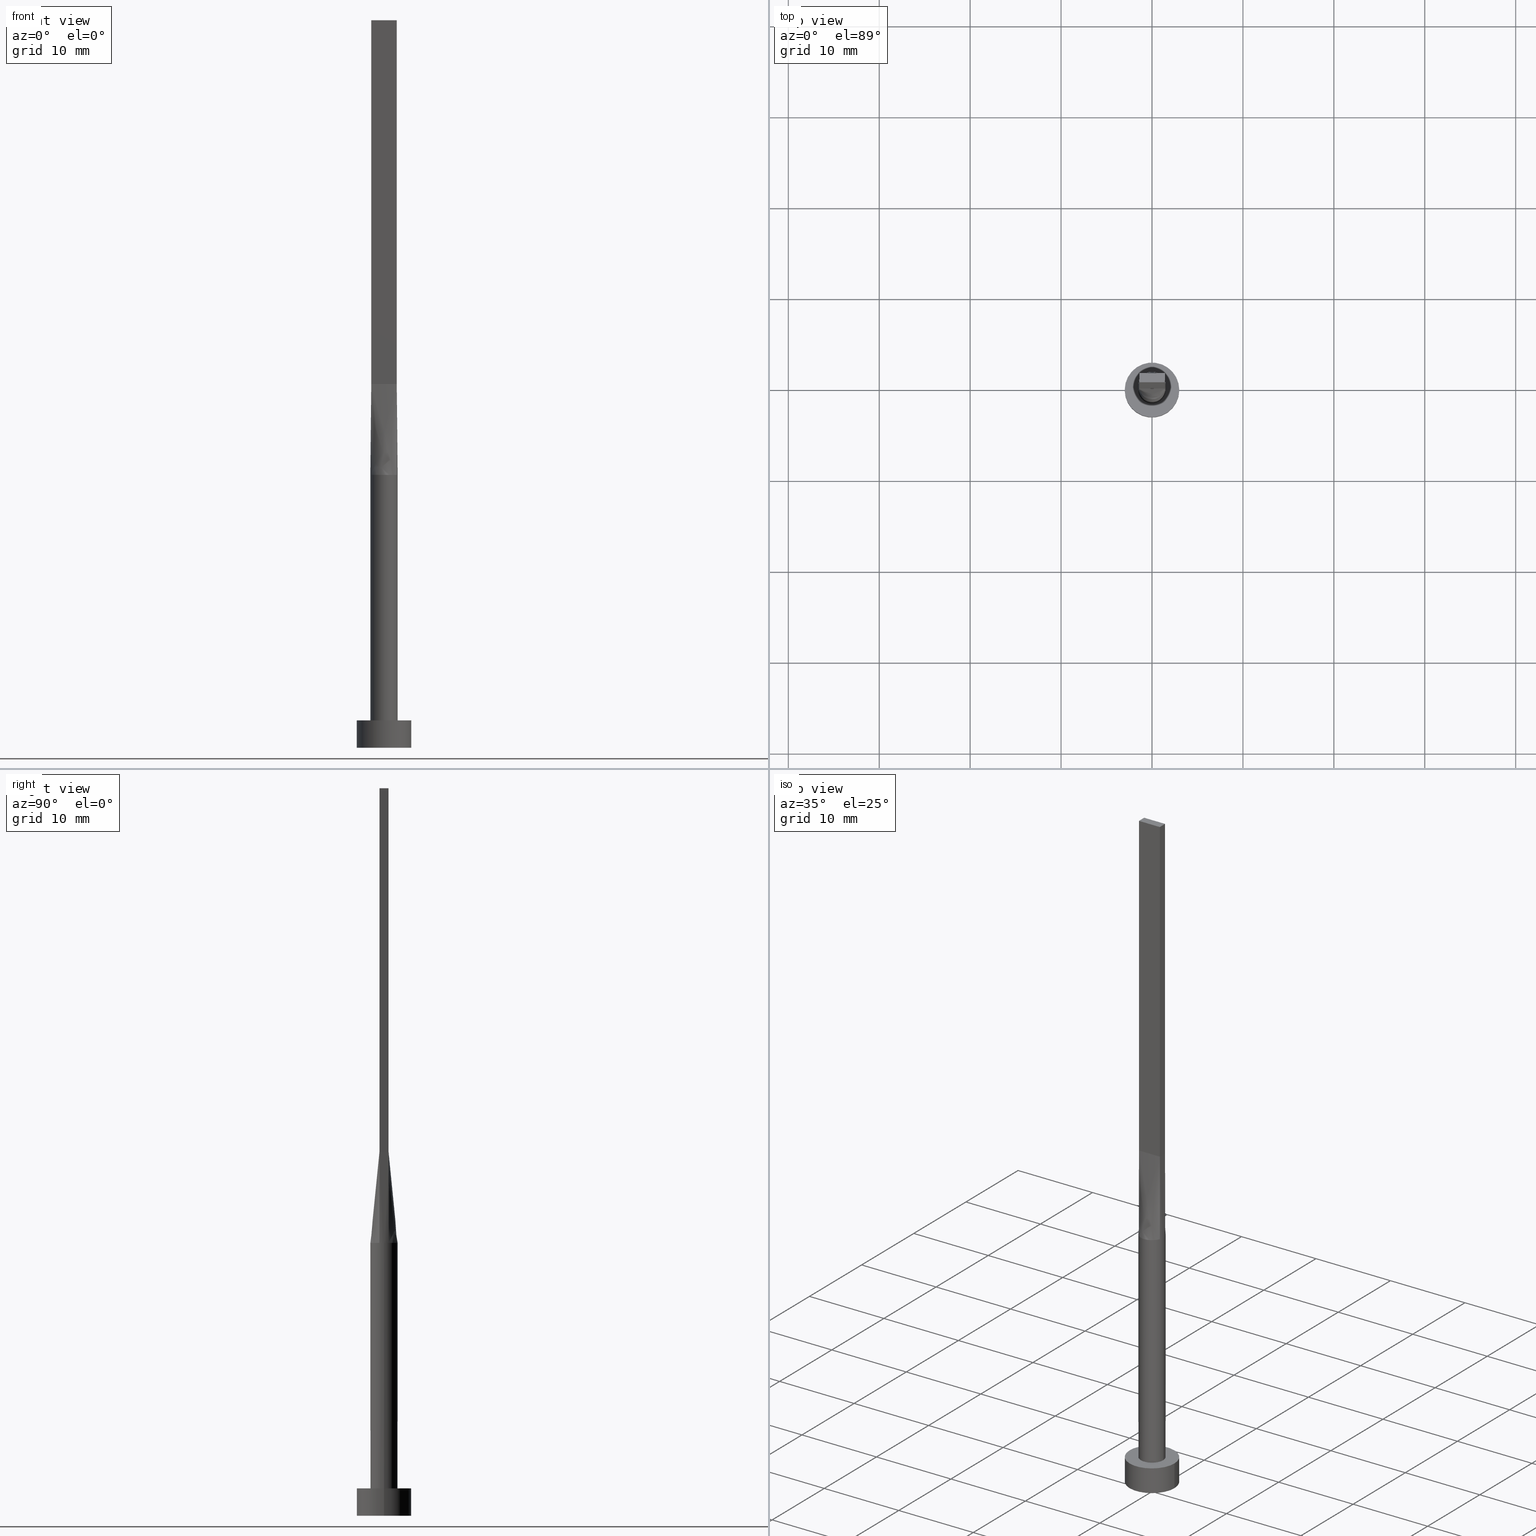
[diagram: canonical four-view strip — front | top / right | iso, engineering-drawing reading convention]
A machine part, canonical four-view strip (front | top / right | iso — engineering-drawing reading convention). The complete STEP part file that produces these views, byte-faithful:
ISO-10303-21;
HEADER;
FILE_DESCRIPTION (( 'STEP AP203' ),
    '1' );
FILE_NAME ('d32a.STEP',
    '2026-02-12T09:08:10',
    ( '' ),
    ( '' ),
    'SwSTEP 2.0',
    'SolidWorks 2019',
    '' );
FILE_SCHEMA (( 'CONFIG_CONTROL_DESIGN' ));
ENDSEC;

DATA;
#1 = CARTESIAN_POINT ( 'NONE',  ( 0.000000000000000000, 0.000000000000000000, 3.000000000000000000 ) ) ;
#2 = VECTOR ( 'NONE', #118, 1000.000000000000000 ) ;
#3 = AXIS2_PLACEMENT_3D ( 'NONE', #540, #504, #375 ) ;
#4 = PLANE ( 'NONE',  #535 ) ;
#5 = EDGE_CURVE ( 'NONE', #149, #128, #182, .T. ) ;
#6 = CARTESIAN_POINT ( 'NONE',  ( -1.161819288130433891, 0.9587178835757675932, 30.00000000000000711 ) ) ;
#7 = DIRECTION ( 'NONE',  ( 1.000000000000000000, 0.000000000000000000, 0.000000000000000000 ) ) ;
#8 = ORIENTED_EDGE ( 'NONE', *, *, #131, .F. ) ;
#9 = CARTESIAN_POINT ( 'NONE',  ( 1.469173953365107144, 0.3461335547732528051, 30.00000000000000000 ) ) ;
#10 = DIRECTION ( 'NONE',  ( 1.000000000000000000, 0.000000000000000000, -0.000000000000000000 ) ) ;
#11 = AXIS2_PLACEMENT_3D ( 'NONE', #327, #374, #507 ) ;
#12 = CARTESIAN_POINT ( 'NONE',  ( 1.406306433696127955, 0.5022522977486175710, 35.00000000000000000 ) ) ;
#13 = ORIENTED_EDGE ( 'NONE', *, *, #432, .T. ) ;
#14 = EDGE_CURVE ( 'NONE', #143, #565, #286, .T. ) ;
#15 = DIRECTION ( 'NONE',  ( -0.000000000000000000, -0.000000000000000000, -1.000000000000000000 ) ) ;
#16 = AXIS2_PLACEMENT_3D ( 'NONE', #95, #451, #551 ) ;
#17 = CC_DESIGN_PERSON_AND_ORGANIZATION_ASSIGNMENT ( #441, #220, ( #247 ) ) ;
#18 = LINE ( 'NONE', #519, #230 ) ;
#19 = PERSON ( 'NEUR�EN�', 'NEUR�EN�', 'NEUR�EN�', ('NEUR�EN�'), ('NEUR�EN�'), ('NEUR�EN�') ) ;
#20 = EDGE_LOOP ( 'NONE', ( #377, #79, #391, #154 ) ) ;
#21 = DIRECTION ( 'NONE',  ( 0.000000000000000000, 0.000000000000000000, 1.000000000000000000 ) ) ;
#22 = DIRECTION ( 'NONE',  ( -2.168404344971009361E-16, -1.000000000000000000, 0.000000000000000000 ) ) ;
#23 = CC_DESIGN_DATE_AND_TIME_ASSIGNMENT ( #360, #164, ( #357 ) ) ;
#24 = CARTESIAN_POINT ( 'NONE',  ( -0.8182264876570952694, -1.266912425724809665, 29.99999999999999645 ) ) ;
#25 = DIRECTION ( 'NONE',  ( -1.000000000000000000, 0.000000000000000000, 0.000000000000000000 ) ) ;
#26 = ORIENTED_EDGE ( 'NONE', *, *, #105, .F. ) ;
#27 = CARTESIAN_POINT ( 'NONE',  ( -0.4666666666666679508, -0.4999999999999995559, 39.99999999999999289 ) ) ;
#28 = ORIENTED_EDGE ( 'NONE', *, *, #197, .F. ) ;
#29 = CARTESIAN_POINT ( 'NONE',  ( -1.373020107211261109, -0.6153643240040214124, 29.99999999999999645 ) ) ;
#30 = AXIS2_PLACEMENT_3D ( 'NONE', #1, #226, #175 ) ;
#31 = EDGE_LOOP ( 'NONE', ( #419, #212, #534, #170, #292, #359 ) ) ;
#32 = PRODUCT_DEFINITION_FORMATION_WITH_SPECIFIED_SOURCE ( 'LIBOVOLN�', '', #341, .NOT_KNOWN. ) ;
#33 = CARTESIAN_POINT ( 'NONE',  ( -1.283333333333332993, 0.5000000000000002220, 39.99999999999999289 ) ) ;
#34 = MANIFOLD_SOLID_BREP ( 'P�idat vysunut�m5', #468 ) ;
#35 = ORIENTED_EDGE ( 'NONE', *, *, #227, .F. ) ;
#36 = APPROVAL_STATUS ( 'not_yet_approved' ) ;
#37 = CALENDAR_DATE ( 2026, 12, 2 ) ;
#38 = EDGE_LOOP ( 'NONE', ( #471, #311, #514, #325 ) ) ;
#39 = CALENDAR_DATE ( 2026, 12, 2 ) ;
#40 = CARTESIAN_POINT ( 'NONE',  ( -1.399999999999999689, -0.1666666666666657415, 39.99999999999999289 ) ) ;
#41 = CC_DESIGN_APPROVAL ( #297, ( #32 ) ) ;
#42 = CARTESIAN_POINT ( 'NONE',  ( 1.399999999999999689, 0.5000000000000002220, 80.00000000000000000 ) ) ;
#43 = EDGE_CURVE ( 'NONE', #574, #306, #106, .T. ) ;
#44 = CARTESIAN_POINT ( 'NONE',  ( -1.469173953365107144, -0.3461335547732520834, 30.00000000000000000 ) ) ;
#45 = DIRECTION ( 'NONE',  ( 7.744301232039317914E-17, 1.000000000000000000, -0.000000000000000000 ) ) ;
#46 = FACE_OUTER_BOUND ( 'NONE', #552, .T. ) ;
#47 = DIRECTION ( 'NONE',  ( 0.000000000000000000, 0.000000000000000000, 1.000000000000000000 ) ) ;
#48 = CC_DESIGN_PERSON_AND_ORGANIZATION_ASSIGNMENT ( #492, #529, ( #32 ) ) ;
#49 = CARTESIAN_POINT ( 'NONE',  ( 0.000000000000000000, 0.000000000000000000, 3.000000000000000000 ) ) ;
#50 = ORGANIZATION ( 'NEUR�EN�', 'NEUR�EN�', '' ) ;
#51 = CARTESIAN_POINT ( 'NONE',  ( -1.373020107211261331, 0.6153643240040217455, 30.00000000000000355 ) ) ;
#52 = FACE_OUTER_BOUND ( 'NONE', #260, .T. ) ;
#53 = EDGE_LOOP ( 'NONE', ( #301, #415, #254, #277 ) ) ;
#54 = CARTESIAN_POINT ( 'NONE',  ( 1.399999999999999689, -0.1666666666666641039, 39.99999999999999289 ) ) ;
#55 = PLANE ( 'NONE',  #200 ) ;
#56 = ORIENTED_EDGE ( 'NONE', *, *, #216, .T. ) ;
#57 = CARTESIAN_POINT ( 'NONE',  ( 1.500000000000000222, -0.1732137494637014941, 29.99999999999999289 ) ) ;
#58 = EDGE_CURVE ( 'NONE', #306, #435, #550, .T. ) ;
#59 = ORIENTED_EDGE ( 'NONE', *, *, #307, .F. ) ;
#60 = LOCAL_TIME ( 10, 8, 10.00000000000000000, #222 ) ;
#61 = CARTESIAN_POINT ( 'NONE',  ( 1.161819288130433891, 0.9587178835757675932, 30.00000000000000355 ) ) ;
#62 = EDGE_CURVE ( 'NONE', #355, #483, #516, .T. ) ;
#63 = CARTESIAN_POINT ( 'NONE',  ( -3.000000000000000444, 0.000000000000000000, 3.000000000000000000 ) ) ;
#64 = CYLINDRICAL_SURFACE ( 'NONE', #211, 1.500000000000000222 ) ;
#65 = PLANE ( 'NONE',  #274 ) ;
#66 = EDGE_CURVE ( 'NONE', #486, #107, #326, .T. ) ;
#67 = CARTESIAN_POINT ( 'NONE',  ( -1.316960349798174557, -0.7311494208568978248, 30.00000000000001421 ) ) ;
#68 = DIRECTION ( 'NONE',  ( -0.000000000000000000, -0.000000000000000000, -1.000000000000000000 ) ) ;
#69 = CARTESIAN_POINT ( 'NONE',  ( 1.500000000000000222, 1.836970198721030181E-16, 3.000000000000000000 ) ) ;
#70 = DIRECTION ( 'NONE',  ( 0.000000000000000000, 0.000000000000000000, 1.000000000000000000 ) ) ;
#71 = EDGE_LOOP ( 'NONE', ( #431, #59, #74, #13 ) ) ;
#72 = ADVANCED_BREP_SHAPE_REPRESENTATION ( 'd32a', ( #34, #221 ), #298 ) ;
#73 = LINE ( 'NONE', #255, #518 ) ;
#74 = ORIENTED_EDGE ( 'NONE', *, *, #43, .F. ) ;
#75 = DIRECTION ( 'NONE',  ( 1.000000000000000000, -2.168404344971009361E-16, 0.000000000000000000 ) ) ;
#76 = CARTESIAN_POINT ( 'NONE',  ( -1.161819288130434114, -0.9587178835757669271, 30.00000000000000355 ) ) ;
#77 = EDGE_CURVE ( 'NONE', #486, #332, #555, .T. ) ;
#78 = AXIS2_PLACEMENT_3D ( 'NONE', #474, #21, #470 ) ;
#79 = ORIENTED_EDGE ( 'NONE', *, *, #432, .F. ) ;
#80 = PERSON_AND_ORGANIZATION_ROLE ( 'creator' ) ;
#81 = CARTESIAN_POINT ( 'NONE',  ( 0.8166666666666658747, -0.4999999999999997780, 39.99999999999999289 ) ) ;
#82 = EDGE_LOOP ( 'NONE', ( #506, #125, #531, #196, #490, #463 ) ) ;
#83 =( LENGTH_UNIT ( ) NAMED_UNIT ( * ) SI_UNIT ( .MILLI., .METRE. ) );
#84 = FACE_OUTER_BOUND ( 'NONE', #38, .T. ) ;
#85 = CARTESIAN_POINT ( 'NONE',  ( 1.166666666666666963, 0.5000000000000002220, 39.99999999999999289 ) ) ;
#86 = SHAPE_DEFINITION_REPRESENTATION ( #245, #72 ) ;
#87 = AXIS2_PLACEMENT_3D ( 'NONE', #290, #473, #293 ) ;
#88 = CARTESIAN_POINT ( 'NONE',  ( -0.4666666666666647867, 0.5000000000000002220, 39.99999999999999289 ) ) ;
#89 = CARTESIAN_POINT ( 'NONE',  ( -1.399999999999999911, -0.4999999999999995559, 80.00000000000000000 ) ) ;
#90 = CARTESIAN_POINT ( 'NONE',  ( 1.399999999999999689, 0.5000000000000002220, 40.00000000000000000 ) ) ;
#91 = CC_DESIGN_PERSON_AND_ORGANIZATION_ASSIGNMENT ( #440, #80, ( #357 ) ) ;
#92 = CARTESIAN_POINT ( 'NONE',  ( -1.399999999999999911, -0.4999999999999995559, 40.00000000000000000 ) ) ;
#93 = DIRECTION ( 'NONE',  ( -0.000000000000000000, -0.000000000000000000, -1.000000000000000000 ) ) ;
#94 = FACE_OUTER_BOUND ( 'NONE', #238, .T. ) ;
#95 = CARTESIAN_POINT ( 'NONE',  ( 0.000000000000000000, 0.000000000000000000, 30.00000000000000000 ) ) ;
#96 = AXIS2_PLACEMENT_3D ( 'NONE', #282, #413, #99 ) ;
#97 = ORIENTED_EDGE ( 'NONE', *, *, #207, .T. ) ;
#98 = VECTOR ( 'NONE', #188, 1000.000000000000000 ) ;
#99 = DIRECTION ( 'NONE',  ( 1.000000000000000000, 0.000000000000000000, 0.000000000000000000 ) ) ;
#100 = AXIS2_PLACEMENT_3D ( 'NONE', #495, #267, #270 ) ;
#101 = DIRECTION ( 'NONE',  ( -0.000000000000000000, -0.000000000000000000, -1.000000000000000000 ) ) ;
#102 = EDGE_LOOP ( 'NONE', ( #97, #190, #28, #56 ) ) ;
#103 = CARTESIAN_POINT ( 'NONE',  ( -0.1761797990592590402, 1.499999999999999778, 30.00000000000000000 ) ) ;
#104 = AXIS2_PLACEMENT_3D ( 'NONE', #237, #501, #10 ) ;
#105 = EDGE_CURVE ( 'NONE', #395, #128, #199, .T. ) ;
#106 = LINE ( 'NONE', #416, #162 ) ;
#107 = VERTEX_POINT ( 'NONE', #472 ) ;
#108 = VECTOR ( 'NONE', #515, 1000.000000000000000 ) ;
#109 = CARTESIAN_POINT ( 'NONE',  ( -0.6732153042498576490, 1.351288176626052495, 30.00000000000000355 ) ) ;
#110 = LINE ( 'NONE', #156, #543 ) ;
#111 = ORIENTED_EDGE ( 'NONE', *, *, #454, .T. ) ;
#112 = ADVANCED_FACE ( 'NONE', ( #94 ), #426, .T. ) ;
#113 = DIRECTION ( 'NONE',  ( 0.000000000000000000, 0.000000000000000000, 1.000000000000000000 ) ) ;
#114 = CARTESIAN_POINT ( 'NONE',  ( 1.316960349798174335, -0.7311494208568987130, 30.00000000000000355 ) ) ;
#115 = LINE ( 'NONE', #244, #436 ) ;
#116 = CARTESIAN_POINT ( 'NONE',  ( -1.399999999999999689, 0.5000000000000002220, 40.00000000000000000 ) ) ;
#117 = CIRCLE ( 'NONE', #189, 3.000000000000000444 ) ;
#118 = DIRECTION ( 'NONE',  ( -0.000000000000000000, -0.000000000000000000, -1.000000000000000000 ) ) ;
#119 = ORIENTED_EDGE ( 'NONE', *, *, #447, .F. ) ;
#120 = CARTESIAN_POINT ( 'NONE',  ( -0.2333333333333347526, -0.4999999999999995559, 39.99999999999999289 ) ) ;
#121 = ORIENTED_EDGE ( 'NONE', *, *, #343, .T. ) ;
#122 = DIRECTION ( 'NONE',  ( 0.000000000000000000, 0.000000000000000000, 1.000000000000000000 ) ) ;
#123 = EDGE_CURVE ( 'NONE', #332, #335, #150, .T. ) ;
#124 = CARTESIAN_POINT ( 'NONE',  ( -1.399999999999999911, -0.4999999999999995559, 40.00000000000000000 ) ) ;
#125 = ORIENTED_EDGE ( 'NONE', *, *, #480, .F. ) ;
#126 = CALENDAR_DATE ( 2026, 12, 2 ) ;
#127 = CARTESIAN_POINT ( 'NONE',  ( -0.9333333333333320159, 0.5000000000000002220, 39.99999999999999289 ) ) ;
#128 = VERTEX_POINT ( 'NONE', #201 ) ;
#129 = DATE_AND_TIME ( #353, #488 ) ;
#130 = AXIS2_PLACEMENT_3D ( 'NONE', #49, #93, #537 ) ;
#131 = EDGE_CURVE ( 'NONE', #483, #143, #420, .T. ) ;
#132 = CARTESIAN_POINT ( 'NONE',  ( 0.8166666666666677621, 0.5000000000000002220, 39.99999999999999289 ) ) ;
#133 = CARTESIAN_POINT ( 'NONE',  ( -0.2333333333333313386, 0.5000000000000002220, 39.99999999999999289 ) ) ;
#134 = APPROVAL_STATUS ( 'not_yet_approved' ) ;
#135 = DIRECTION ( 'NONE',  ( 1.000000000000000000, 0.000000000000000000, -0.000000000000000000 ) ) ;
#136 = CARTESIAN_POINT ( 'NONE',  ( 0.8182264876570948253, 1.266912425724810110, 29.99999999999999645 ) ) ;
#137 = FACE_OUTER_BOUND ( 'NONE', #102, .T. ) ;
#138 = CARTESIAN_POINT ( 'NONE',  ( -0.5833333333333314830, 0.5000000000000002220, 39.99999999999999289 ) ) ;
#139 = EDGE_CURVE ( 'NONE', #554, #395, #430, .T. ) ;
#140 = FACE_BOUND ( 'NONE', #192, .T. ) ;
#141 = CARTESIAN_POINT ( 'NONE',  ( 1.399999999999999689, 0.3333333333333350912, 39.99999999999999289 ) ) ;
#142 = CARTESIAN_POINT ( 'NONE',  ( -1.399999999999999689, 0.5000000000000002220, 80.00000000000000000 ) ) ;
#143 = VERTEX_POINT ( 'NONE', #564 ) ;
#144 = LOCAL_TIME ( 10, 8, 10.00000000000000000, #316 ) ;
#145 = EDGE_CURVE ( 'NONE', #554, #486, #449, .T. ) ;
#146 = DIRECTION ( 'NONE',  ( -1.000000000000000000, 0.000000000000000000, 0.000000000000000000 ) ) ;
#147 = VECTOR ( 'NONE', #527, 1000.000000000000114 ) ;
#148 = DIRECTION ( 'NONE',  ( 0.000000000000000000, 0.000000000000000000, 1.000000000000000000 ) ) ;
#149 = VERTEX_POINT ( 'NONE', #560 ) ;
#150 = LINE ( 'NONE', #333, #108 ) ;
#151 = AXIS2_PLACEMENT_3D ( 'NONE', #275, #549, #135 ) ;
#152 = CARTESIAN_POINT ( 'NONE',  ( 1.412612867392256222, -0.5045045954972351421, 30.00000000000000000 ) ) ;
#153 = CARTESIAN_POINT ( 'NONE',  ( 1.500000000000000222, 1.836970198721030181E-16, 30.00000000000000000 ) ) ;
#154 = ORIENTED_EDGE ( 'NONE', *, *, #62, .T. ) ;
#155 = VECTOR ( 'NONE', #388, 1000.000000000000000 ) ;
#156 = CARTESIAN_POINT ( 'NONE',  ( -1.399999999999999689, 0.5000000000000002220, 80.00000000000000000 ) ) ;
#157 = CARTESIAN_POINT ( 'NONE',  ( -1.412612867392256444, 0.5045045954972343649, 30.00000000000000000 ) ) ;
#158 = CARTESIAN_POINT ( 'NONE',  ( -1.166666666666666963, -0.4999999999999995559, 39.99999999999999289 ) ) ;
#159 = FACE_OUTER_BOUND ( 'NONE', #31, .T. ) ;
#160 = VERTEX_POINT ( 'NONE', #246 ) ;
#161 = CARTESIAN_POINT ( 'NONE',  ( 1.062433464748102629, -1.070418989248103747, 30.00000000000001066 ) ) ;
#162 = VECTOR ( 'NONE', #232, 1000.000000000000000 ) ;
#163 = EDGE_LOOP ( 'NONE', ( #205, #442, #234, #349 ) ) ;
#164 = DATE_TIME_ROLE ( 'creation_date' ) ;
#165 = CARTESIAN_POINT ( 'NONE',  ( -0.1166666666666681257, -0.4999999999999995559, 40.00000000000000000 ) ) ;
#166 = AXIS2_PLACEMENT_3D ( 'NONE', #458, #148, #546 ) ;
#167 = ORIENTED_EDGE ( 'NONE', *, *, #447, .T. ) ;
#168 = APPLICATION_PROTOCOL_DEFINITION ( 'international standard', 'config_control_design', 1994, #510 ) ;
#169 = CARTESIAN_POINT ( 'NONE',  ( -3.000000000000000444, 0.000000000000000000, 3.000000000000000000 ) ) ;
#170 = ORIENTED_EDGE ( 'NONE', *, *, #5, .F. ) ;
#171 = MECHANICAL_CONTEXT ( 'NONE', #510, 'mechanical' ) ;
#172 = ADVANCED_FACE ( 'NONE', ( #159 ), #64, .T. ) ;
#173 = CC_DESIGN_APPROVAL ( #251, ( #357 ) ) ;
#174 = ADVANCED_FACE ( 'NONE', ( #249 ), #65, .F. ) ;
#175 = DIRECTION ( 'NONE',  ( -1.000000000000000000, 0.000000000000000000, 0.000000000000000000 ) ) ;
#176 = CYLINDRICAL_SURFACE ( 'NONE', #130, 3.000000000000000444 ) ;
#177 = CARTESIAN_POINT ( 'NONE',  ( -1.399999999999999689, 0.1666666666666674901, 39.99999999999999289 ) ) ;
#178 = FACE_OUTER_BOUND ( 'NONE', #53, .T. ) ;
#179 = EDGE_CURVE ( 'NONE', #218, #160, #422, .T. ) ;
#180 = CARTESIAN_POINT ( 'NONE',  ( 1.283333333333333437, 0.5000000000000002220, 39.99999999999999289 ) ) ;
#181 = CARTESIAN_POINT ( 'NONE',  ( -1.399999999999999689, 0.5000000000000002220, 80.00000000000000000 ) ) ;
#182 = LINE ( 'NONE', #239, #523 ) ;
#183 = CARTESIAN_POINT ( 'NONE',  ( 0.000000000000000000, 0.000000000000000000, 30.00000000000000000 ) ) ;
#184 = ADVANCED_FACE ( 'NONE', ( #479 ), #418, .F. ) ;
#185 = ORIENTED_EDGE ( 'NONE', *, *, #402, .F. ) ;
#186 = CARTESIAN_POINT ( 'NONE',  ( 1.399999999999999689, 0.5000000000000002220, 40.00000000000000000 ) ) ;
#187 = EDGE_CURVE ( 'NONE', #379, #412, #253, .T. ) ;
#188 = DIRECTION ( 'NONE',  ( -2.168404344971008868E-16, 1.000000000000000000, -0.000000000000000000 ) ) ;
#189 = AXIS2_PLACEMENT_3D ( 'NONE', #386, #113, #381 ) ;
#190 = ORIENTED_EDGE ( 'NONE', *, *, #62, .F. ) ;
#191 = CARTESIAN_POINT ( 'NONE',  ( 1.499999999999999556, 0.1732137494637011610, 30.00000000000000000 ) ) ;
#192 = EDGE_LOOP ( 'NONE', ( #215, #26 ) ) ;
#193 = CIRCLE ( 'NONE', #166, 3.000000000000000444 ) ;
#194 = CARTESIAN_POINT ( 'NONE',  ( -1.412646936588081381, 0.5045169241220069933, 30.00000000000000000 ) ) ;
#195 = CARTESIAN_POINT ( 'NONE',  ( 3.000000000000000444, 3.673940397442060361E-16, 3.000000000000000000 ) ) ;
#196 = ORIENTED_EDGE ( 'NONE', *, *, #453, .F. ) ;
#197 = EDGE_CURVE ( 'NONE', #435, #355, #110, .T. ) ;
#198 = CARTESIAN_POINT ( 'NONE',  ( 1.399999999999999911, -0.4999999999999997780, 80.00000000000000000 ) ) ;
#199 = CIRCLE ( 'NONE', #96, 1.500000000000000222 ) ;
#200 = AXIS2_PLACEMENT_3D ( 'NONE', #89, #45, #228 ) ;
#201 = CARTESIAN_POINT ( 'NONE',  ( -1.500000000000000222, 0.000000000000000000, 3.000000000000000000 ) ) ;
#202 = APPLICATION_CONTEXT ( 'configuration controlled 3d designs of mechanical parts and assemblies' ) ;
#203 = CARTESIAN_POINT ( 'NONE',  ( 0.4666666666666653418, -0.4999999999999995559, 39.99999999999999289 ) ) ;
#204 = CARTESIAN_POINT ( 'NONE',  ( 3.000000000000000444, 3.673940397442060361E-16, 3.000000000000000000 ) ) ;
#205 = ORIENTED_EDGE ( 'NONE', *, *, #123, .T. ) ;
#206 = CARTESIAN_POINT ( 'NONE',  ( -0.9333333333333340143, -0.4999999999999995559, 39.99999999999999289 ) ) ;
#207 = EDGE_CURVE ( 'NONE', #335, #483, #115, .T. ) ;
#208 = ORIENTED_EDGE ( 'NONE', *, *, #497, .F. ) ;
#209 = PERSON_AND_ORGANIZATION_ROLE ( 'design_owner' ) ;
#210 = CARTESIAN_POINT ( 'NONE',  ( 0.3520402531411743752, -1.468082505288408113, 30.00000000000000355 ) ) ;
#211 = AXIS2_PLACEMENT_3D ( 'NONE', #517, #68, #25 ) ;
#212 = ORIENTED_EDGE ( 'NONE', *, *, #139, .T. ) ;
#213 = CARTESIAN_POINT ( 'NONE',  ( 0.000000000000000000, 0.000000000000000000, 0.000000000000000000 ) ) ;
#214 = CARTESIAN_POINT ( 'NONE',  ( -1.316960349798174557, 0.7311494208568980468, 30.00000000000000355 ) ) ;
#215 = ORIENTED_EDGE ( 'NONE', *, *, #317, .F. ) ;
#216 = EDGE_CURVE ( 'NONE', #435, #335, #18, .T. ) ;
#217 = APPROVAL_ROLE ( '' ) ;
#218 = VERTEX_POINT ( 'NONE', #195 ) ;
#219 = CARTESIAN_POINT ( 'NONE',  ( 0.9333333333333342363, 0.5000000000000002220, 39.99999999999999289 ) ) ;
#220 = PERSON_AND_ORGANIZATION_ROLE ( 'classification_officer' ) ;
#221 = AXIS2_PLACEMENT_3D ( 'NONE', #213, #122, #578 ) ;
#222 = COORDINATED_UNIVERSAL_TIME_OFFSET ( 1, 0, .AHEAD. ) ;
#223 = DIRECTION ( 'NONE',  ( -0.000000000000000000, -0.000000000000000000, -1.000000000000000000 ) ) ;
#224 = PERSON_AND_ORGANIZATION_ROLE ( 'design_supplier' ) ;
#225 = AXIS2_PLACEMENT_3D ( 'NONE', #183, #47, #7 ) ;
#226 = DIRECTION ( 'NONE',  ( -0.000000000000000000, -0.000000000000000000, -1.000000000000000000 ) ) ;
#227 = EDGE_CURVE ( 'NONE', #218, #379, #117, .T. ) ;
#228 = DIRECTION ( 'NONE',  ( -1.000000000000000000, 7.744301232039317914E-17, 0.000000000000000000 ) ) ;
#229 = CARTESIAN_POINT ( 'NONE',  ( 1.399999999999999689, 0.5000000000000002220, 40.00000000000000000 ) ) ;
#230 = VECTOR ( 'NONE', #556, 1000.000000000000000 ) ;
#231 = CARTESIAN_POINT ( 'NONE',  ( 1.399999999999999911, -0.4999999999999997780, 40.00000000000000000 ) ) ;
#232 = DIRECTION ( 'NONE',  ( -2.168404344971008868E-16, 1.000000000000000000, 0.000000000000000000 ) ) ;
#233 = CYLINDRICAL_SURFACE ( 'NONE', #16, 1.500000000000000222 ) ;
#234 = ORIENTED_EDGE ( 'NONE', *, *, #58, .F. ) ;
#235 = EDGE_CURVE ( 'NONE', #160, #412, #350, .T. ) ;
#236 = CARTESIAN_POINT ( 'NONE',  ( 1.316960349798174557, 0.7311494208568982689, 30.00000000000001421 ) ) ;
#237 = CARTESIAN_POINT ( 'NONE',  ( 0.000000000000000000, 0.000000000000000000, 3.000000000000000000 ) ) ;
#238 = EDGE_LOOP ( 'NONE', ( #243, #288, #525, #466, #185 ) ) ;
#239 = CARTESIAN_POINT ( 'NONE',  ( -1.500000000000000222, 0.000000000000000000, 30.00000000000000000 ) ) ;
#240 = VECTOR ( 'NONE', #223, 1000.000000000000000 ) ;
#241 = CARTESIAN_POINT ( 'NONE',  ( 0.3520402531411749303, 1.468082505288407447, 30.00000000000001066 ) ) ;
#242 = DIRECTION ( 'NONE',  ( -0.000000000000000000, -0.000000000000000000, -1.000000000000000000 ) ) ;
#243 = ORIENTED_EDGE ( 'NONE', *, *, #480, .T. ) ;
#244 = CARTESIAN_POINT ( 'NONE',  ( -1.399999999999999689, 0.5000000000000002220, 40.00000000000000000 ) ) ;
#245 = PRODUCT_DEFINITION_SHAPE ( 'NONE', 'NONE',  #357 ) ;
#246 = CARTESIAN_POINT ( 'NONE',  ( 3.000000000000000444, 3.673940397442060361E-16, 0.000000000000000000 ) ) ;
#247 = SECURITY_CLASSIFICATION ( '', '', #313 ) ;
#248 = CARTESIAN_POINT ( 'NONE',  ( 1.412612867392256222, -0.5045045954972348090, 30.00000000000000000 ) ) ;
#249 = FACE_OUTER_BOUND ( 'NONE', #71, .T. ) ;
#250 = EDGE_LOOP ( 'NONE', ( #481, #397, #208, #382 ) ) ;
#251 = APPROVAL ( #532, 'NEUR�EN�' ) ;
#252 = CARTESIAN_POINT ( 'NONE',  ( 0.9333333333333325710, -0.4999999999999997780, 39.99999999999999289 ) ) ;
#253 = LINE ( 'NONE', #63, #339 ) ;
#254 = ORIENTED_EDGE ( 'NONE', *, *, #562, .T. ) ;
#255 = CARTESIAN_POINT ( 'NONE',  ( 1.399999999999999911, -0.4999999999999997780, 80.00000000000000000 ) ) ;
#256 = ORIENTED_EDGE ( 'NONE', *, *, #179, .T. ) ;
#257 = CARTESIAN_POINT ( 'NONE',  ( 1.399999999999999911, -0.4999999999999997780, 80.00000000000000000 ) ) ;
#258 = CARTESIAN_POINT ( 'NONE',  ( 0.1761797990592584850, -1.499999999999999556, 30.00000000000000000 ) ) ;
#259 = VECTOR ( 'NONE', #547, 1000.000000000000114 ) ;
#260 = EDGE_LOOP ( 'NONE', ( #167, #528 ) ) ;
#261 = DATE_AND_TIME ( #446, #340 ) ;
#262 = ORIENTED_EDGE ( 'NONE', *, *, #207, .F. ) ;
#263 = APPROVAL_ROLE ( '' ) ;
#264 = LINE ( 'NONE', #542, #240 ) ;
#265 = CARTESIAN_POINT ( 'NONE',  ( 0.5833333333333348136, 0.5000000000000002220, 39.99999999999999289 ) ) ;
#266 = VECTOR ( 'NONE', #146, 1000.000000000000000 ) ;
#267 = DIRECTION ( 'NONE',  ( 0.000000000000000000, 0.000000000000000000, 1.000000000000000000 ) ) ;
#268 = CIRCLE ( 'NONE', #225, 1.500000000000000222 ) ;
#269 = DIRECTION ( 'NONE',  ( 0.000000000000000000, 0.000000000000000000, 1.000000000000000000 ) ) ;
#270 = DIRECTION ( 'NONE',  ( 1.000000000000000000, 0.000000000000000000, 0.000000000000000000 ) ) ;
#271 = FACE_OUTER_BOUND ( 'NONE', #82, .T. ) ;
#272 = CARTESIAN_POINT ( 'NONE',  ( -1.399999999999999689, 0.5000000000000002220, 40.00000000000000000 ) ) ;
#273 = CARTESIAN_POINT ( 'NONE',  ( 1.412628473635865189, 0.5045102250504699404, 30.00000000000000000 ) ) ;
#274 = AXIS2_PLACEMENT_3D ( 'NONE', #198, #427, #524 ) ;
#275 = CARTESIAN_POINT ( 'NONE',  ( 0.000000000000000000, 0.000000000000000000, 80.00000000000000000 ) ) ;
#276 = APPROVAL_PERSON_ORGANIZATION ( #444, #251, #217 ) ;
#277 = ORIENTED_EDGE ( 'NONE', *, *, #43, .T. ) ;
#278 = ADVANCED_FACE ( 'NONE', ( #561 ), #421, .T. ) ;
#279 = CIRCLE ( 'NONE', #100, 1.500000000000000222 ) ;
#280 = CARTESIAN_POINT ( 'NONE',  ( 0.6732153042498577600, 1.351288176626052717, 30.00000000000000711 ) ) ;
#281 = LINE ( 'NONE', #328, #98 ) ;
#282 = CARTESIAN_POINT ( 'NONE',  ( 0.000000000000000000, 0.000000000000000000, 3.000000000000000000 ) ) ;
#283 = ORIENTED_EDGE ( 'NONE', *, *, #179, .F. ) ;
#284 = CIRCLE ( 'NONE', #478, 1.500000000000000222 ) ;
#285 = CARTESIAN_POINT ( 'NONE',  ( 1.062433464748102407, 1.070418989248103525, 30.00000000000000355 ) ) ;
#286 = CIRCLE ( 'NONE', #11, 1.500000000000000222 ) ;
#287 = LOCAL_TIME ( 10, 8, 10.00000000000000000, #403 ) ;
#288 = ORIENTED_EDGE ( 'NONE', *, *, #145, .T. ) ;
#289 = CARTESIAN_POINT ( 'NONE',  ( -1.316960349798174557, 0.7311494208568980468, 30.00000000000000355 ) ) ;
#290 = CARTESIAN_POINT ( 'NONE',  ( 0.000000000000000000, 0.000000000000000000, 0.000000000000000000 ) ) ;
#291 = DESIGN_CONTEXT ( 'detailed design', #202, 'design' ) ;
#292 = ORIENTED_EDGE ( 'NONE', *, *, #454, .F. ) ;
#293 = DIRECTION ( 'NONE',  ( 1.000000000000000000, 0.000000000000000000, 0.000000000000000000 ) ) ;
#294 = CARTESIAN_POINT ( 'NONE',  ( 1.166666666666666075, -0.4999999999999997780, 39.99999999999999289 ) ) ;
#295 = ADVANCED_FACE ( 'NONE', ( #362 ), #323, .T. ) ;
#296 = CARTESIAN_POINT ( 'NONE',  ( -1.399999999999999689, 0.3333333333333339255, 39.99999999999999289 ) ) ;
#297 = APPROVAL ( #36, 'NEUR�EN�' ) ;
#298 =( GEOMETRIC_REPRESENTATION_CONTEXT ( 3 ) GLOBAL_UNCERTAINTY_ASSIGNED_CONTEXT ( ( #505 ) ) GLOBAL_UNIT_ASSIGNED_CONTEXT ( ( #83, #575, #576 ) ) REPRESENTATION_CONTEXT ( 'NONE', 'WORKASPACE' ) );
#299 = CARTESIAN_POINT ( 'NONE',  ( -1.283333333333333437, -0.4999999999999995559, 39.99999999999999289 ) ) ;
#300 = CARTESIAN_POINT ( 'NONE',  ( 0.000000000000000000, 0.000000000000000000, 0.000000000000000000 ) ) ;
#301 = ORIENTED_EDGE ( 'NONE', *, *, #58, .T. ) ;
#302 = CIRCLE ( 'NONE', #513, 1.500000000000000222 ) ;
#303 = CARTESIAN_POINT ( 'NONE',  ( -0.1761797990592596230, -1.500000000000000000, 30.00000000000000000 ) ) ;
#304 = ORIENTED_EDGE ( 'NONE', *, *, #343, .F. ) ;
#305 = CARTESIAN_POINT ( 'NONE',  ( 0.8182264876570946033, -1.266912425724810998, 30.00000000000000000 ) ) ;
#306 = VERTEX_POINT ( 'NONE', #42 ) ;
#307 = EDGE_CURVE ( 'NONE', #306, #332, #264, .T. ) ;
#308 = DATE_AND_TIME ( #126, #60 ) ;
#309 = CARTESIAN_POINT ( 'NONE',  ( -0.8166666666666652086, 0.5000000000000002220, 39.99999999999999289 ) ) ;
#310 = VECTOR ( 'NONE', #15, 1000.000000000000000 ) ;
#311 = ORIENTED_EDGE ( 'NONE', *, *, #541, .T. ) ;
#312 = APPROVAL_DATE_TIME ( #129, #297 ) ;
#313 = SECURITY_CLASSIFICATION_LEVEL ( 'unclassified' ) ;
#314 = COORDINATED_UNIVERSAL_TIME_OFFSET ( 1, 0, .AHEAD. ) ;
#315 = CARTESIAN_POINT ( 'NONE',  ( -1.499999999999999556, -0.1732137494637007724, 30.00000000000000000 ) ) ;
#316 = COORDINATED_UNIVERSAL_TIME_OFFSET ( 1, 0, .AHEAD. ) ;
#317 = EDGE_CURVE ( 'NONE', #128, #395, #279, .T. ) ;
#318 = CARTESIAN_POINT ( 'NONE',  ( 1.316960349798174557, 0.7311494208568982689, 30.00000000000001421 ) ) ;
#319 = APPROVAL_DATE_TIME ( #261, #336 ) ;
#320 = LINE ( 'NONE', #508, #424 ) ;
#321 = CARTESIAN_POINT ( 'NONE',  ( 0.6732153042498577600, 1.351288176626052717, 30.00000000000000711 ) ) ;
#322 = DIRECTION ( 'NONE',  ( 0.000000000000000000, 0.000000000000000000, 1.000000000000000000 ) ) ;
#323 = CYLINDRICAL_SURFACE ( 'NONE', #30, 3.000000000000000444 ) ;
#324 = FACE_OUTER_BOUND ( 'NONE', #163, .T. ) ;
#325 = ORIENTED_EDGE ( 'NONE', *, *, #77, .F. ) ;
#326 = B_SPLINE_CURVE_WITH_KNOTS ( 'NONE', 3,
 ( #273, #330, #236, #61, #285, #511, #280, #241, #380, #103, #372, #109, #417, #457, #6, #289, #51, #194 ),
 .UNSPECIFIED., .F., .F.,
 ( 4, 2, 2, 2, 2, 2, 2, 2, 4 ),
 ( 0.000000000000000000, 0.1250000000000000000, 0.2500000000000000000, 0.3750000000000000000, 0.5000000000000000000, 0.6250000000000000000, 0.7500000000000000000, 0.8750000000000000000, 1.000000000000000000 ),
 .UNSPECIFIED. ) ;
#327 = CARTESIAN_POINT ( 'NONE',  ( 0.000000000000000000, 0.000000000000000000, 30.00000000000000000 ) ) ;
#328 = CARTESIAN_POINT ( 'NONE',  ( 1.399999999999999689, 0.5000000000000002220, 40.00000000000000000 ) ) ;
#329 = ORIENTED_EDGE ( 'NONE', *, *, #187, .F. ) ;
#330 = CARTESIAN_POINT ( 'NONE',  ( 1.373020107211261109, 0.6153643240040217455, 29.99999999999999645 ) ) ;
#331 = CARTESIAN_POINT ( 'NONE',  ( 0.000000000000000000, 0.000000000000000000, 30.00000000000000000 ) ) ;
#332 = VERTEX_POINT ( 'NONE', #90 ) ;
#333 = CARTESIAN_POINT ( 'NONE',  ( -1.399999999999999689, 0.5000000000000002220, 40.00000000000000000 ) ) ;
#334 = ADVANCED_FACE ( 'NONE', ( #46 ), #176, .T. ) ;
#335 = VERTEX_POINT ( 'NONE', #272 ) ;
#336 = APPROVAL ( #134, 'NEUR�EN�' ) ;
#337 = CARTESIAN_POINT ( 'NONE',  ( 1.399999999999999911, -0.3333333333333315385, 39.99999999999999289 ) ) ;
#338 = DIRECTION ( 'NONE',  ( 1.000000000000000000, 0.000000000000000000, -0.000000000000000000 ) ) ;
#339 = VECTOR ( 'NONE', #242, 1000.000000000000000 ) ;
#340 = LOCAL_TIME ( 10, 8, 10.00000000000000000, #485 ) ;
#341 = PRODUCT ( 'd32a', 'd32a', '', ( #171 ) ) ;
#342 = DIRECTION ( 'NONE',  ( -0.001261285608005553900, -0.0004504591457162553103, -0.9999991031221843185 ) ) ;
#343 = EDGE_CURVE ( 'NONE', #412, #160, #369, .T. ) ;
#344 = CARTESIAN_POINT ( 'NONE',  ( -1.399999999999999689, 0.5000000000000002220, 40.00000000000000000 ) ) ;
#345 = ADVANCED_FACE ( 'NONE', ( #84 ), #346, .T. ) ;
#346 = B_SPLINE_SURFACE_WITH_KNOTS ( 'NONE', 3, 1, ( 
 ( #408, #229 ),
 ( #404, #180 ),
 ( #318, #85 ),
 ( #370, #219 ),
 ( #445, #132 ),
 ( #136, #265 ),
 ( #321, #545 ),
 ( #400, #502 ),
 ( #448, #577 ),
 ( #579, #538 ),
 ( #499, #133 ),
 ( #496, #88 ),
 ( #580, #138 ),
 ( #522, #309 ),
 ( #489, #127 ),
 ( #214, #572 ),
 ( #475, #33 ),
 ( #425, #116 ) ),
 .UNSPECIFIED., .F., .F., .F.,
 ( 4, 2, 2, 2, 2, 2, 2, 2, 4 ),
 ( 2, 2 ),
 ( 0.000000000000000000, 0.1250000000000000000, 0.2500000000000000000, 0.3750000000000000000, 0.5000000000000000000, 0.6250000000000000000, 0.7500000000000000000, 0.8750000000000000000, 1.000000000000000000 ),
 ( 0.000000000000000000, 1.000000000000000000 ),
 .UNSPECIFIED. ) ;
#347 = CARTESIAN_POINT ( 'NONE',  ( 0.2333333333333319215, -0.4999999999999995559, 39.99999999999999289 ) ) ;
#348 = CARTESIAN_POINT ( 'NONE',  ( -1.406306433696128178, -0.5022522977486166829, 35.00000000000000000 ) ) ;
#349 = ORIENTED_EDGE ( 'NONE', *, *, #307, .T. ) ;
#350 = CIRCLE ( 'NONE', #87, 3.000000000000000444 ) ;
#351 = CARTESIAN_POINT ( 'NONE',  ( 1.161819288130433669, -0.9587178835757682593, 30.00000000000000711 ) ) ;
#352 = ORIENTED_EDGE ( 'NONE', *, *, #453, .T. ) ;
#353 = CALENDAR_DATE ( 2026, 12, 2 ) ;
#354 = CARTESIAN_POINT ( 'NONE',  ( 0.5833333333333321491, -0.4999999999999996669, 39.99999999999999289 ) ) ;
#355 = VERTEX_POINT ( 'NONE', #433 ) ;
#356 = APPLICATION_PROTOCOL_DEFINITION ( 'international standard', 'config_control_design', 1994, #202 ) ;
#357 = PRODUCT_DEFINITION ( 'NEZN�M�', '', #32, #291 ) ;
#358 = CARTESIAN_POINT ( 'NONE',  ( -0.5833333333333345916, -0.4999999999999995559, 39.99999999999999289 ) ) ;
#359 = ORIENTED_EDGE ( 'NONE', *, *, #66, .F. ) ;
#360 = DATE_AND_TIME ( #39, #287 ) ;
#361 = PERSON_AND_ORGANIZATION ( #19, #50 ) ;
#362 = FACE_OUTER_BOUND ( 'NONE', #389, .T. ) ;
#363 = PERSON_AND_ORGANIZATION ( #19, #50 ) ;
#364 = CC_DESIGN_DATE_AND_TIME_ASSIGNMENT ( #405, #366, ( #247 ) ) ;
#365 = DIRECTION ( 'NONE',  ( 1.000000000000000000, 0.000000000000000000, 0.000000000000000000 ) ) ;
#366 = DATE_TIME_ROLE ( 'classification_date' ) ;
#367 = CARTESIAN_POINT ( 'NONE',  ( -1.412612867392256444, -0.5045045954972340319, 30.00000000000000000 ) ) ;
#368 = CARTESIAN_POINT ( 'NONE',  ( 0.000000000000000000, 0.000000000000000000, 30.00000000000000000 ) ) ;
#369 = CIRCLE ( 'NONE', #459, 3.000000000000000444 ) ;
#370 = CARTESIAN_POINT ( 'NONE',  ( 1.161819288130433891, 0.9587178835757675932, 30.00000000000000355 ) ) ;
#371 = PLANE ( 'NONE',  #3 ) ;
#372 = CARTESIAN_POINT ( 'NONE',  ( -0.3520402531411749858, 1.468082505288407891, 30.00000000000000355 ) ) ;
#373 = PLANE ( 'NONE',  #151 ) ;
#374 = DIRECTION ( 'NONE',  ( 0.000000000000000000, 0.000000000000000000, 1.000000000000000000 ) ) ;
#375 = DIRECTION ( 'NONE',  ( 0.000000000000000000, -0.000000000000000000, -1.000000000000000000 ) ) ;
#376 = CC_DESIGN_APPROVAL ( #336, ( #247 ) ) ;
#377 = ORIENTED_EDGE ( 'NONE', *, *, #497, .T. ) ;
#378 = DIRECTION ( 'NONE',  ( -0.000000000000000000, -0.000000000000000000, -1.000000000000000000 ) ) ;
#379 = VERTEX_POINT ( 'NONE', #169 ) ;
#380 = CARTESIAN_POINT ( 'NONE',  ( 0.1761797990592590679, 1.500000000000000222, 30.00000000000000000 ) ) ;
#381 = DIRECTION ( 'NONE',  ( 1.000000000000000000, 0.000000000000000000, 0.000000000000000000 ) ) ;
#382 = ORIENTED_EDGE ( 'NONE', *, *, #131, .T. ) ;
#383 = DIRECTION ( 'NONE',  ( -2.168404344971009361E-16, -1.000000000000000000, 0.000000000000000000 ) ) ;
#384 = CC_DESIGN_PERSON_AND_ORGANIZATION_ASSIGNMENT ( #363, #224, ( #32 ) ) ;
#385 = ADVANCED_FACE ( 'NONE', ( #396 ), #521, .T. ) ;
#386 = CARTESIAN_POINT ( 'NONE',  ( 0.000000000000000000, 0.000000000000000000, 3.000000000000000000 ) ) ;
#387 = CARTESIAN_POINT ( 'NONE',  ( 1.399999999999999911, -0.4999999999999997780, 40.00000000000000000 ) ) ;
#388 = DIRECTION ( 'NONE',  ( -0.000000000000000000, -0.000000000000000000, -1.000000000000000000 ) ) ;
#389 = EDGE_LOOP ( 'NONE', ( #35, #256, #571, #329 ) ) ;
#390 = LINE ( 'NONE', #530, #147 ) ;
#391 = ORIENTED_EDGE ( 'NONE', *, *, #562, .F. ) ;
#392 = APPROVAL_PERSON_ORGANIZATION ( #573, #336, #493 ) ;
#393 = CARTESIAN_POINT ( 'NONE',  ( 1.412648369950143756, -0.5045174509283282260, 30.00000000000000000 ) ) ;
#394 = CARTESIAN_POINT ( 'NONE',  ( -0.3520402531411755964, -1.468082505288407447, 30.00000000000001066 ) ) ;
#395 = VERTEX_POINT ( 'NONE', #69 ) ;
#396 = FACE_OUTER_BOUND ( 'NONE', #250, .T. ) ;
#397 = ORIENTED_EDGE ( 'NONE', *, *, #402, .T. ) ;
#398 = LINE ( 'NONE', #494, #559 ) ;
#399 = DIRECTION ( 'NONE',  ( 1.000000000000000000, -7.744301232039317914E-17, 0.000000000000000000 ) ) ;
#400 = CARTESIAN_POINT ( 'NONE',  ( 0.3520402531411749303, 1.468082505288407447, 30.00000000000001066 ) ) ;
#401 = CC_DESIGN_SECURITY_CLASSIFICATION ( #247, ( #32 ) ) ;
#402 = EDGE_CURVE ( 'NONE', #565, #439, #390, .T. ) ;
#403 = COORDINATED_UNIVERSAL_TIME_OFFSET ( 1, 0, .AHEAD. ) ;
#404 = CARTESIAN_POINT ( 'NONE',  ( 1.373020107211261109, 0.6153643240040217455, 29.99999999999999645 ) ) ;
#405 = DATE_AND_TIME ( #37, #144 ) ;
#406 = DIRECTION ( 'NONE',  ( 0.000000000000000000, 0.000000000000000000, 1.000000000000000000 ) ) ;
#407 = CARTESIAN_POINT ( 'NONE',  ( 1.500000000000000000, 1.053334699963867185E-17, 30.00000000000000000 ) ) ;
#408 = CARTESIAN_POINT ( 'NONE',  ( 1.412612867392256444, 0.5045045954972344759, 30.00000000000000000 ) ) ;
#409 = LINE ( 'NONE', #92, #469 ) ;
#410 = CARTESIAN_POINT ( 'NONE',  ( 1.399999999999999689, 0.5000000000000002220, 80.00000000000000000 ) ) ;
#411 = CARTESIAN_POINT ( 'NONE',  ( -1.399999999999999911, -0.4999999999999995559, 40.00000000000000000 ) ) ;
#412 = VERTEX_POINT ( 'NONE', #566 ) ;
#413 = DIRECTION ( 'NONE',  ( 0.000000000000000000, 0.000000000000000000, 1.000000000000000000 ) ) ;
#414 = PLANE ( 'NONE',  #104 ) ;
#415 = ORIENTED_EDGE ( 'NONE', *, *, #197, .T. ) ;
#416 = CARTESIAN_POINT ( 'NONE',  ( 1.399999999999999911, -0.4999999999999997780, 80.00000000000000000 ) ) ;
#417 = CARTESIAN_POINT ( 'NONE',  ( -0.8182264876570950474, 1.266912425724810554, 30.00000000000000000 ) ) ;
#418 = PLANE ( 'NONE',  #487 ) ;
#419 = ORIENTED_EDGE ( 'NONE', *, *, #145, .F. ) ;
#420 = LINE ( 'NONE', #348, #423 ) ;
#421 = B_SPLINE_SURFACE_WITH_KNOTS ( 'NONE', 3, 1, ( 
 ( #157, #344 ),
 ( #520, #296 ),
 ( #476, #177 ),
 ( #315, #40 ),
 ( #44, #456 ),
 ( #367, #450 ) ),
 .UNSPECIFIED., .F., .F., .F.,
 ( 4, 2, 4 ),
 ( 2, 2 ),
 ( 0.000000000000000000, 0.5000000000000000000, 1.000000000000000000 ),
 ( 0.000000000000000000, 1.000000000000000000 ),
 .UNSPECIFIED. ) ;
#422 = LINE ( 'NONE', #204, #2 ) ;
#423 = VECTOR ( 'NONE', #342, 1000.000000000000114 ) ;
#424 = VECTOR ( 'NONE', #498, 1000.000000000000114 ) ;
#425 = CARTESIAN_POINT ( 'NONE',  ( -1.412612867392256444, 0.5045045954972340319, 30.00000000000000000 ) ) ;
#426 = B_SPLINE_SURFACE_WITH_KNOTS ( 'NONE', 3, 1, ( 
 ( #152, #553 ),
 ( #465, #337 ),
 ( #57, #54 ),
 ( #191, #461 ),
 ( #9, #141 ),
 ( #503, #186 ) ),
 .UNSPECIFIED., .F., .F., .F.,
 ( 4, 2, 4 ),
 ( 2, 2 ),
 ( 0.000000000000000000, 0.5000000000000000000, 1.000000000000000000 ),
 ( 0.000000000000000000, 1.000000000000000000 ),
 .UNSPECIFIED. ) ;
#427 = DIRECTION ( 'NONE',  ( -1.000000000000000000, -2.168404344971008868E-16, 0.000000000000000000 ) ) ;
#428 = ORIENTED_EDGE ( 'NONE', *, *, #235, .F. ) ;
#429 = CARTESIAN_POINT ( 'NONE',  ( 1.373020107211260665, -0.6153643240040224116, 30.00000000000000355 ) ) ;
#430 = LINE ( 'NONE', #153, #155 ) ;
#431 = ORIENTED_EDGE ( 'NONE', *, *, #539, .T. ) ;
#432 = EDGE_CURVE ( 'NONE', #574, #439, #73, .T. ) ;
#433 = CARTESIAN_POINT ( 'NONE',  ( -1.399999999999999911, -0.4999999999999995559, 80.00000000000000000 ) ) ;
#434 = ADVANCED_FACE ( 'NONE', ( #324 ), #371, .F. ) ;
#435 = VERTEX_POINT ( 'NONE', #142 ) ;
#436 = VECTOR ( 'NONE', #383, 1000.000000000000000 ) ;
#437 = DIRECTION ( 'NONE',  ( 2.168404344971009361E-16, 1.000000000000000000, 0.000000000000000000 ) ) ;
#438 = CARTESIAN_POINT ( 'NONE',  ( -1.062433464748102852, -1.070418989248103081, 30.00000000000000355 ) ) ;
#439 = VERTEX_POINT ( 'NONE', #231 ) ;
#440 = PERSON_AND_ORGANIZATION ( #19, #50 ) ;
#441 = PERSON_AND_ORGANIZATION ( #19, #50 ) ;
#442 = ORIENTED_EDGE ( 'NONE', *, *, #216, .F. ) ;
#443 = ADVANCED_FACE ( 'NONE', ( #271 ), #233, .T. ) ;
#444 = PERSON_AND_ORGANIZATION ( #19, #50 ) ;
#445 = CARTESIAN_POINT ( 'NONE',  ( 1.062433464748102407, 1.070418989248103525, 30.00000000000000355 ) ) ;
#446 = CALENDAR_DATE ( 2026, 12, 2 ) ;
#447 = EDGE_CURVE ( 'NONE', #379, #218, #193, .T. ) ;
#448 = CARTESIAN_POINT ( 'NONE',  ( 0.1761797990592590679, 1.500000000000000222, 30.00000000000000000 ) ) ;
#449 = CIRCLE ( 'NONE', #78, 1.500000000000000222 ) ;
#450 = CARTESIAN_POINT ( 'NONE',  ( -1.399999999999999911, -0.4999999999999995559, 40.00000000000000000 ) ) ;
#451 = DIRECTION ( 'NONE',  ( -0.000000000000000000, -0.000000000000000000, -1.000000000000000000 ) ) ;
#452 = CARTESIAN_POINT ( 'NONE',  ( 0.000000000000000000, 0.000000000000000000, 0.000000000000000000 ) ) ;
#453 = EDGE_CURVE ( 'NONE', #149, #143, #268, .T. ) ;
#454 = EDGE_CURVE ( 'NONE', #107, #149, #302, .T. ) ;
#455 = FACE_OUTER_BOUND ( 'NONE', #20, .T. ) ;
#456 = CARTESIAN_POINT ( 'NONE',  ( -1.399999999999999911, -0.3333333333333325377, 39.99999999999999289 ) ) ;
#457 = CARTESIAN_POINT ( 'NONE',  ( -1.062433464748102407, 1.070418989248103525, 30.00000000000001066 ) ) ;
#458 = CARTESIAN_POINT ( 'NONE',  ( 0.000000000000000000, 0.000000000000000000, 3.000000000000000000 ) ) ;
#459 = AXIS2_PLACEMENT_3D ( 'NONE', #452, #406, #365 ) ;
#460 = ORIENTED_EDGE ( 'NONE', *, *, #187, .T. ) ;
#461 = CARTESIAN_POINT ( 'NONE',  ( 1.399999999999999689, 0.1666666666666692109, 39.99999999999999289 ) ) ;
#462 = DIRECTION ( 'NONE',  ( 1.000000000000000000, 2.664535259100375697E-15, 0.000000000000000000 ) ) ;
#463 = ORIENTED_EDGE ( 'NONE', *, *, #317, .T. ) ;
#464 = ADVANCED_FACE ( 'NONE', ( #140, #52 ), #414, .T. ) ;
#465 = CARTESIAN_POINT ( 'NONE',  ( 1.469173953365106700, -0.3461335547732530271, 29.99999999999999645 ) ) ;
#466 = ORIENTED_EDGE ( 'NONE', *, *, #539, .F. ) ;
#467 = CARTESIAN_POINT ( 'NONE',  ( -1.399999999999999911, -0.4999999999999995559, 80.00000000000000000 ) ) ;
#468 = CLOSED_SHELL ( 'NONE', ( #172, #295, #334, #464, #184, #443, #385, #112, #278, #345, #434, #558, #548, #174, #491 ) ) ;
#469 = VECTOR ( 'NONE', #512, 1000.000000000000000 ) ;
#470 = DIRECTION ( 'NONE',  ( 1.000000000000000000, 0.000000000000000000, 0.000000000000000000 ) ) ;
#471 = ORIENTED_EDGE ( 'NONE', *, *, #66, .T. ) ;
#472 = CARTESIAN_POINT ( 'NONE',  ( -1.412646936588081381, 0.5045169241220069933, 30.00000000000000000 ) ) ;
#473 = DIRECTION ( 'NONE',  ( 0.000000000000000000, 0.000000000000000000, 1.000000000000000000 ) ) ;
#474 = CARTESIAN_POINT ( 'NONE',  ( 0.000000000000000000, 0.000000000000000000, 30.00000000000000000 ) ) ;
#475 = CARTESIAN_POINT ( 'NONE',  ( -1.373020107211261331, 0.6153643240040217455, 30.00000000000000355 ) ) ;
#476 = CARTESIAN_POINT ( 'NONE',  ( -1.500000000000000666, 0.1732137494637012443, 29.99999999999999289 ) ) ;
#477 = CARTESIAN_POINT ( 'NONE',  ( 1.283333333333332993, -0.4999999999999997780, 39.99999999999999289 ) ) ;
#478 = AXIS2_PLACEMENT_3D ( 'NONE', #331, #269, #462 ) ;
#479 = FACE_OUTER_BOUND ( 'NONE', #567, .T. ) ;
#480 = EDGE_CURVE ( 'NONE', #565, #554, #284, .T. ) ;
#481 = ORIENTED_EDGE ( 'NONE', *, *, #14, .T. ) ;
#482 = CARTESIAN_POINT ( 'NONE',  ( -0.6732153042498583151, -1.351288176626052051, 30.00000000000000711 ) ) ;
#483 = VERTEX_POINT ( 'NONE', #411 ) ;
#484 = CARTESIAN_POINT ( 'NONE',  ( -1.412612867392256444, -0.5045045954972339208, 30.00000000000000000 ) ) ;
#485 = COORDINATED_UNIVERSAL_TIME_OFFSET ( 1, 0, .AHEAD. ) ;
#486 = VERTEX_POINT ( 'NONE', #544 ) ;
#487 = AXIS2_PLACEMENT_3D ( 'NONE', #300, #70, #338 ) ;
#488 = LOCAL_TIME ( 10, 8, 10.00000000000000000, #314 ) ;
#489 = CARTESIAN_POINT ( 'NONE',  ( -1.161819288130433891, 0.9587178835757675932, 30.00000000000000711 ) ) ;
#490 = ORIENTED_EDGE ( 'NONE', *, *, #5, .T. ) ;
#491 = ADVANCED_FACE ( 'NONE', ( #178 ), #373, .T. ) ;
#492 = PERSON_AND_ORGANIZATION ( #19, #50 ) ;
#493 = APPROVAL_ROLE ( '' ) ;
#494 = CARTESIAN_POINT ( 'NONE',  ( -1.399999999999999911, -0.4999999999999995559, 80.00000000000000000 ) ) ;
#495 = CARTESIAN_POINT ( 'NONE',  ( 0.000000000000000000, 0.000000000000000000, 3.000000000000000000 ) ) ;
#496 = CARTESIAN_POINT ( 'NONE',  ( -0.6732153042498576490, 1.351288176626052495, 30.00000000000000355 ) ) ;
#497 = EDGE_CURVE ( 'NONE', #483, #439, #409, .T. ) ;
#498 = DIRECTION ( 'NONE',  ( 0.001261285608005575801, -0.0004504591457162011002, 0.9999991031221843185 ) ) ;
#499 = CARTESIAN_POINT ( 'NONE',  ( -0.3520402531411749858, 1.468082505288407891, 30.00000000000000355 ) ) ;
#500 = PRODUCT_RELATED_PRODUCT_CATEGORY ( 'detail', '', ( #341 ) ) ;
#501 = DIRECTION ( 'NONE',  ( 0.000000000000000000, 0.000000000000000000, 1.000000000000000000 ) ) ;
#502 = CARTESIAN_POINT ( 'NONE',  ( 0.2333333333333351967, 0.5000000000000002220, 39.99999999999999289 ) ) ;
#503 = CARTESIAN_POINT ( 'NONE',  ( 1.412612867392256222, 0.5045045954972349200, 30.00000000000000000 ) ) ;
#504 = DIRECTION ( 'NONE',  ( 0.000000000000000000, -1.000000000000000000, 0.000000000000000000 ) ) ;
#505 = UNCERTAINTY_MEASURE_WITH_UNIT (LENGTH_MEASURE( 1.000000000000000082E-05 ), #83, 'distance_accuracy_value', 'NONE');
#506 = ORIENTED_EDGE ( 'NONE', *, *, #139, .F. ) ;
#507 = DIRECTION ( 'NONE',  ( 1.000000000000000000, 0.000000000000000000, 0.000000000000000000 ) ) ;
#508 = CARTESIAN_POINT ( 'NONE',  ( -1.406306433696127955, 0.5022522977486171269, 35.00000000000000000 ) ) ;
#509 = ORIENTED_EDGE ( 'NONE', *, *, #541, .F. ) ;
#510 = APPLICATION_CONTEXT ( 'configuration controlled 3d designs of mechanical parts and assemblies' ) ;
#511 = CARTESIAN_POINT ( 'NONE',  ( 0.8182264876570948253, 1.266912425724810110, 29.99999999999999645 ) ) ;
#512 = DIRECTION ( 'NONE',  ( 1.000000000000000000, -7.744301232039317914E-17, 0.000000000000000000 ) ) ;
#513 = AXIS2_PLACEMENT_3D ( 'NONE', #368, #322, #581 ) ;
#514 = ORIENTED_EDGE ( 'NONE', *, *, #123, .F. ) ;
#515 = DIRECTION ( 'NONE',  ( -1.000000000000000000, -0.000000000000000000, -0.000000000000000000 ) ) ;
#516 = LINE ( 'NONE', #467, #310 ) ;
#517 = CARTESIAN_POINT ( 'NONE',  ( 0.000000000000000000, 0.000000000000000000, 30.00000000000000000 ) ) ;
#518 = VECTOR ( 'NONE', #101, 1000.000000000000000 ) ;
#519 = CARTESIAN_POINT ( 'NONE',  ( -1.399999999999999689, 0.5000000000000002220, 80.00000000000000000 ) ) ;
#520 = CARTESIAN_POINT ( 'NONE',  ( -1.469173953365106922, 0.3461335547732524165, 29.99999999999999645 ) ) ;
#521 = B_SPLINE_SURFACE_WITH_KNOTS ( 'NONE', 3, 1, ( 
 ( #484, #124 ),
 ( #29, #299 ),
 ( #67, #158 ),
 ( #76, #206 ),
 ( #438, #570 ),
 ( #24, #358 ),
 ( #482, #27 ),
 ( #394, #120 ),
 ( #303, #165 ),
 ( #258, #533 ),
 ( #210, #347 ),
 ( #563, #203 ),
 ( #305, #354 ),
 ( #161, #81 ),
 ( #351, #252 ),
 ( #114, #294 ),
 ( #429, #477 ),
 ( #248, #387 ) ),
 .UNSPECIFIED., .F., .F., .F.,
 ( 4, 2, 2, 2, 2, 2, 2, 2, 4 ),
 ( 2, 2 ),
 ( 0.000000000000000000, 0.1250000000000000000, 0.2500000000000000000, 0.3750000000000000000, 0.5000000000000000000, 0.6250000000000000000, 0.7500000000000000000, 0.8750000000000000000, 1.000000000000000000 ),
 ( 0.000000000000000000, 1.000000000000000000 ),
 .UNSPECIFIED. ) ;
#522 = CARTESIAN_POINT ( 'NONE',  ( -1.062433464748102407, 1.070418989248103525, 30.00000000000001066 ) ) ;
#523 = VECTOR ( 'NONE', #378, 1000.000000000000000 ) ;
#524 = DIRECTION ( 'NONE',  ( 2.168404344971008868E-16, -1.000000000000000000, 0.000000000000000000 ) ) ;
#525 = ORIENTED_EDGE ( 'NONE', *, *, #77, .T. ) ;
#526 = CC_DESIGN_PERSON_AND_ORGANIZATION_ASSIGNMENT ( #361, #209, ( #341 ) ) ;
#527 = DIRECTION ( 'NONE',  ( -0.001261285608005532216, 0.0004504591457163203624, 0.9999991031221843185 ) ) ;
#528 = ORIENTED_EDGE ( 'NONE', *, *, #227, .T. ) ;
#529 = PERSON_AND_ORGANIZATION_ROLE ( 'creator' ) ;
#530 = CARTESIAN_POINT ( 'NONE',  ( 1.406306433696127955, -0.5022522977486173490, 35.00000000000000000 ) ) ;
#531 = ORIENTED_EDGE ( 'NONE', *, *, #14, .F. ) ;
#532 = APPROVAL_STATUS ( 'not_yet_approved' ) ;
#533 = CARTESIAN_POINT ( 'NONE',  ( 0.1166666666666652113, -0.4999999999999995559, 39.99999999999999289 ) ) ;
#534 = ORIENTED_EDGE ( 'NONE', *, *, #105, .T. ) ;
#535 = AXIS2_PLACEMENT_3D ( 'NONE', #181, #75, #437 ) ;
#536 = PERSON_AND_ORGANIZATION ( #19, #50 ) ;
#537 = DIRECTION ( 'NONE',  ( -1.000000000000000000, 0.000000000000000000, 0.000000000000000000 ) ) ;
#538 = CARTESIAN_POINT ( 'NONE',  ( -0.1166666666666646840, 0.5000000000000002220, 39.99999999999999289 ) ) ;
#539 = EDGE_CURVE ( 'NONE', #439, #332, #281, .T. ) ;
#540 = CARTESIAN_POINT ( 'NONE',  ( 1.399999999999999689, 0.5000000000000002220, 80.00000000000000000 ) ) ;
#541 = EDGE_CURVE ( 'NONE', #107, #335, #320, .T. ) ;
#542 = CARTESIAN_POINT ( 'NONE',  ( 1.399999999999999689, 0.5000000000000002220, 80.00000000000000000 ) ) ;
#543 = VECTOR ( 'NONE', #22, 1000.000000000000000 ) ;
#544 = CARTESIAN_POINT ( 'NONE',  ( 1.412628473635865189, 0.5045102250504699404, 30.00000000000000000 ) ) ;
#545 = CARTESIAN_POINT ( 'NONE',  ( 0.4666666666666682839, 0.5000000000000002220, 39.99999999999999289 ) ) ;
#546 = DIRECTION ( 'NONE',  ( 1.000000000000000000, 0.000000000000000000, 0.000000000000000000 ) ) ;
#547 = DIRECTION ( 'NONE',  ( -0.001261285608005553900, -0.0004504591457162878364, 0.9999991031221843185 ) ) ;
#548 = ADVANCED_FACE ( 'NONE', ( #455 ), #55, .F. ) ;
#549 = DIRECTION ( 'NONE',  ( 0.000000000000000000, 0.000000000000000000, 1.000000000000000000 ) ) ;
#550 = LINE ( 'NONE', #410, #266 ) ;
#551 = DIRECTION ( 'NONE',  ( -1.000000000000000000, 0.000000000000000000, 0.000000000000000000 ) ) ;
#552 = EDGE_LOOP ( 'NONE', ( #283, #119, #460, #121 ) ) ;
#553 = CARTESIAN_POINT ( 'NONE',  ( 1.399999999999999911, -0.4999999999999997780, 40.00000000000000000 ) ) ;
#554 = VERTEX_POINT ( 'NONE', #407 ) ;
#555 = LINE ( 'NONE', #12, #259 ) ;
#556 = DIRECTION ( 'NONE',  ( -0.000000000000000000, -0.000000000000000000, -1.000000000000000000 ) ) ;
#557 = EDGE_LOOP ( 'NONE', ( #111, #352, #8, #262, #509 ) ) ;
#558 = ADVANCED_FACE ( 'NONE', ( #137 ), #4, .F. ) ;
#559 = VECTOR ( 'NONE', #399, 1000.000000000000000 ) ;
#560 = CARTESIAN_POINT ( 'NONE',  ( -1.500000000000000000, -6.850053904551815961E-17, 30.00000000000000000 ) ) ;
#561 = FACE_OUTER_BOUND ( 'NONE', #557, .T. ) ;
#562 = EDGE_CURVE ( 'NONE', #355, #574, #398, .T. ) ;
#563 = CARTESIAN_POINT ( 'NONE',  ( 0.6732153042498572049, -1.351288176626052939, 30.00000000000000355 ) ) ;
#564 = CARTESIAN_POINT ( 'NONE',  ( -1.412629890847167724, -0.5045107419440655327, 30.00000000000000000 ) ) ;
#565 = VERTEX_POINT ( 'NONE', #393 ) ;
#566 = CARTESIAN_POINT ( 'NONE',  ( -3.000000000000000444, 0.000000000000000000, 0.000000000000000000 ) ) ;
#567 = EDGE_LOOP ( 'NONE', ( #304, #428 ) ) ;
#568 = APPROVAL_PERSON_ORGANIZATION ( #536, #297, #263 ) ;
#569 = APPROVAL_DATE_TIME ( #308, #251 ) ;
#570 = CARTESIAN_POINT ( 'NONE',  ( -0.8166666666666675400, -0.4999999999999995559, 39.99999999999999289 ) ) ;
#571 = ORIENTED_EDGE ( 'NONE', *, *, #235, .T. ) ;
#572 = CARTESIAN_POINT ( 'NONE',  ( -1.166666666666665853, 0.5000000000000002220, 39.99999999999999289 ) ) ;
#573 = PERSON_AND_ORGANIZATION ( #19, #50 ) ;
#574 = VERTEX_POINT ( 'NONE', #257 ) ;
#575 =( NAMED_UNIT ( * ) PLANE_ANGLE_UNIT ( ) SI_UNIT ( $, .RADIAN. ) );
#576 =( NAMED_UNIT ( * ) SI_UNIT ( $, .STERADIAN. ) SOLID_ANGLE_UNIT ( ) );
#577 = CARTESIAN_POINT ( 'NONE',  ( 0.1166666666666685975, 0.5000000000000002220, 40.00000000000000000 ) ) ;
#578 = DIRECTION ( 'NONE',  ( 1.000000000000000000, 0.000000000000000000, 0.000000000000000000 ) ) ;
#579 = CARTESIAN_POINT ( 'NONE',  ( -0.1761797990592590402, 1.499999999999999778, 30.00000000000000000 ) ) ;
#580 = CARTESIAN_POINT ( 'NONE',  ( -0.8182264876570950474, 1.266912425724810554, 30.00000000000000000 ) ) ;
#581 = DIRECTION ( 'NONE',  ( 1.000000000000000000, 0.000000000000000000, 0.000000000000000000 ) ) ;
ENDSEC;
END-ISO-10303-21;
